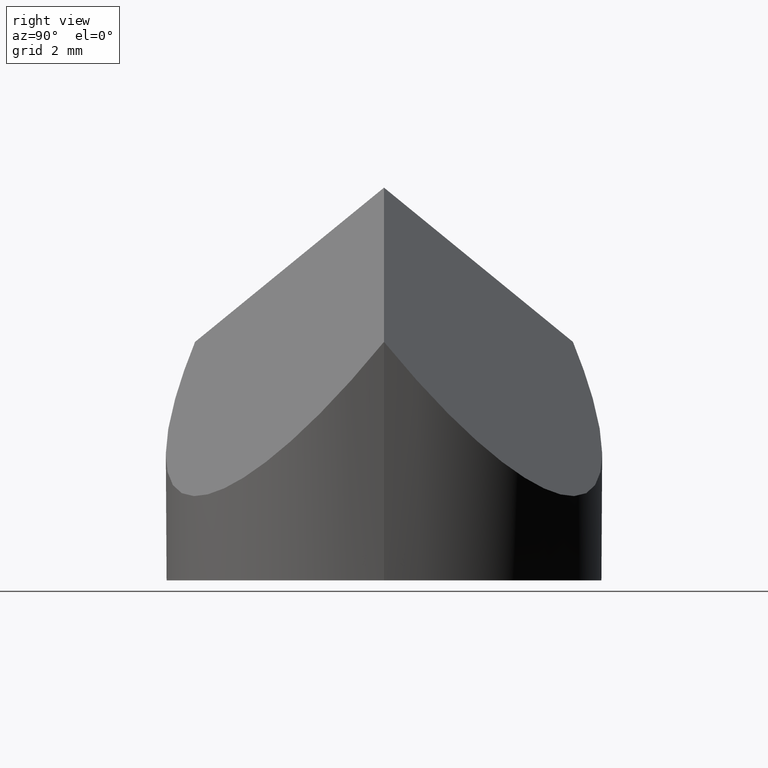
[diagram: clean part render]
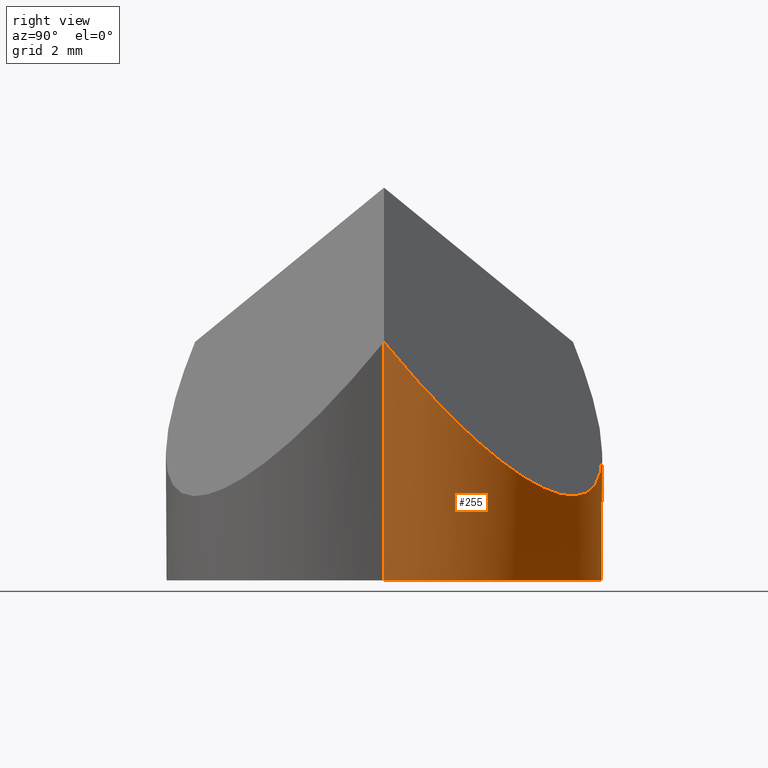
[diagram: same view with one face highlighted and labeled with its STEP entity id]
A machine part, right view. The second image highlights one B-rep face of the part: STEP entity #255.
In plain terms, the highlighted cylindrical surface (partial cylindrical patch) has radius 5 mm, axis along (-0, -0, -1).
Its self-contained STEP definition (entity closure, byte-faithful):
#2 = EDGE_CURVE ( 'NONE', #269, #208, #50, .T. ) ;
#12 = CARTESIAN_POINT ( 'NONE',  ( -4.084936490538905400, 3.415063509461090600, 3.224227220163949700 ) ) ;
#17 = DIRECTION ( 'NONE',  ( -0.0000000000000000000, -0.0000000000000000000, -1.000000000000000000 ) ) ;
#24 = CARTESIAN_POINT ( 'NONE',  ( 0.0000000000000000000, 0.0000000000000000000, 0.0000000000000000000 ) ) ;
#25 = EDGE_LOOP ( 'NONE', ( #273, #86, #96, #109, #72 ) ) ;
#38 = CARTESIAN_POINT ( 'NONE',  ( 5.000000000000004400, 9.161633835790454200E-016, 5.465200381197320200 ) ) ;
#48 = DIRECTION ( 'NONE',  ( 0.0000000000000000000, 0.0000000000000000000, 1.000000000000000000 ) ) ;
#50 = LINE ( 'NONE', #311, #280 ) ;
#57 = CARTESIAN_POINT ( 'NONE',  ( -2.500000000000003100, 4.330127018922186500, 5.465200381197300700 ) ) ;
#66 = VERTEX_POINT ( 'NONE', #264 ) ;
#72 = ORIENTED_EDGE ( 'NONE', *, *, #302, .T. ) ;
#74 = LINE ( 'NONE', #150, #293 ) ;
#77 = CIRCLE ( 'NONE', #83, 5.000000000000000000 ) ;
#83 = AXIS2_PLACEMENT_3D ( 'NONE', #24, #48, #291 ) ;
#86 = ORIENTED_EDGE ( 'NONE', *, *, #2, .T. ) ;
#96 = ORIENTED_EDGE ( 'NONE', *, *, #119, .T. ) ;
#100 = CARTESIAN_POINT ( 'NONE',  ( -2.500000000000003100, 4.330127018922186500, 5.465200381197300700 ) ) ;
#104 = CARTESIAN_POINT ( 'NONE',  ( -2.500000000000003100, 4.330127018922186500, 5.465200381197300700 ) ) ;
#109 = ORIENTED_EDGE ( 'NONE', *, *, #204, .F. ) ;
#111 = DIRECTION ( 'NONE',  ( -0.0000000000000000000, -0.0000000000000000000, -1.000000000000000000 ) ) ;
#119 = EDGE_CURVE ( 'NONE', #208, #66, #77, .T. ) ;
#128 = DIRECTION ( 'NONE',  ( -1.000000000000000000, 0.0000000000000000000, 0.0000000000000000000 ) ) ;
#134 = FACE_OUTER_BOUND ( 'NONE', #25, .T. ) ;
#140 = AXIS2_PLACEMENT_3D ( 'NONE', #276, #206, #128 ) ;
#148 = VERTEX_POINT ( 'NONE', #207 ) ;
#150 = CARTESIAN_POINT ( 'NONE',  ( -5.000000000000000000, 0.0000000000000000000, 9.000000000000000000 ) ) ;
#168 =( BOUNDED_CURVE ( )  B_SPLINE_CURVE ( 3, ( #38, #279, #200, #57 ),
 .UNSPECIFIED., .F., .F. ) 
 B_SPLINE_CURVE_WITH_KNOTS ( ( 4, 4 ),
 ( 5.235987755982986200, 7.330382858376182800 ),
 .UNSPECIFIED. ) 
 CURVE ( )  GEOMETRIC_REPRESENTATION_ITEM ( )  RATIONAL_B_SPLINE_CURVE ( ( 1.000000000000000000, 0.6666666666666663000, 0.6666666666666663000, 1.000000000000000000 ) ) 
 REPRESENTATION_ITEM ( '' )  );
#180 = EDGE_CURVE ( 'NONE', #269, #274, #168, .T. ) ;
#200 = CARTESIAN_POINT ( 'NONE',  ( 1.249999999999993800, 6.495190528383295400, 0.1630009529932606400 ) ) ;
#204 = EDGE_CURVE ( 'NONE', #148, #66, #74, .T. ) ;
#206 = DIRECTION ( 'NONE',  ( -0.0000000000000000000, -0.0000000000000000000, -1.000000000000000000 ) ) ;
#207 = CARTESIAN_POINT ( 'NONE',  ( -5.000000000000000000, 0.0000000000000000000, 1.930400762394619300 ) ) ;
#208 = VERTEX_POINT ( 'NONE', #283 ) ;
#214 =( BOUNDED_CURVE ( )  B_SPLINE_CURVE ( 3, ( #300, #251, #12, #104 ),
 .UNSPECIFIED., .F., .F. ) 
 B_SPLINE_CURVE_WITH_KNOTS ( ( 4, 4 ),
 ( 0.0000000000000000000, 1.047197551196596100 ),
 .UNSPECIFIED. ) 
 CURVE ( )  GEOMETRIC_REPRESENTATION_ITEM ( )  RATIONAL_B_SPLINE_CURVE ( ( 1.000000000000000000, 0.9106836025229593200, 0.9106836025229593200, 1.000000000000000000 ) ) 
 REPRESENTATION_ITEM ( '' )  );
#251 = CARTESIAN_POINT ( 'NONE',  ( -4.999999999999999100, 1.830127018922189900, 1.930400762394619100 ) ) ;
#255 = ADVANCED_FACE ( 'NONE', ( #134 ), #301, .T. ) ;
#264 = CARTESIAN_POINT ( 'NONE',  ( -5.000000000000000000, 0.0000000000000000000, 0.0000000000000000000 ) ) ;
#269 = VERTEX_POINT ( 'NONE', #305 ) ;
#273 = ORIENTED_EDGE ( 'NONE', *, *, #180, .F. ) ;
#274 = VERTEX_POINT ( 'NONE', #100 ) ;
#276 = CARTESIAN_POINT ( 'NONE',  ( 0.0000000000000000000, 0.0000000000000000000, 9.000000000000000000 ) ) ;
#279 = CARTESIAN_POINT ( 'NONE',  ( 5.000000000000000900, 4.330127018922196300, 0.1630009529932728000 ) ) ;
#280 = VECTOR ( 'NONE', #111, 1000.000000000000000 ) ;
#283 = CARTESIAN_POINT ( 'NONE',  ( 5.000000000000000000, 6.123233995736766300E-016, 0.0000000000000000000 ) ) ;
#291 = DIRECTION ( 'NONE',  ( 1.000000000000000000, 0.0000000000000000000, 0.0000000000000000000 ) ) ;
#293 = VECTOR ( 'NONE', #17, 1000.000000000000000 ) ;
#300 = CARTESIAN_POINT ( 'NONE',  ( -5.000000000000000000, 0.0000000000000000000, 1.930400762394619300 ) ) ;
#301 = CYLINDRICAL_SURFACE ( 'NONE', #140, 5.000000000000000000 ) ;
#302 = EDGE_CURVE ( 'NONE', #148, #274, #214, .T. ) ;
#305 = CARTESIAN_POINT ( 'NONE',  ( 5.000000000000004400, 9.161633835790454200E-016, 5.465200381197320200 ) ) ;
#311 = CARTESIAN_POINT ( 'NONE',  ( 5.000000000000000000, 6.123233995736766300E-016, 9.000000000000000000 ) ) ;